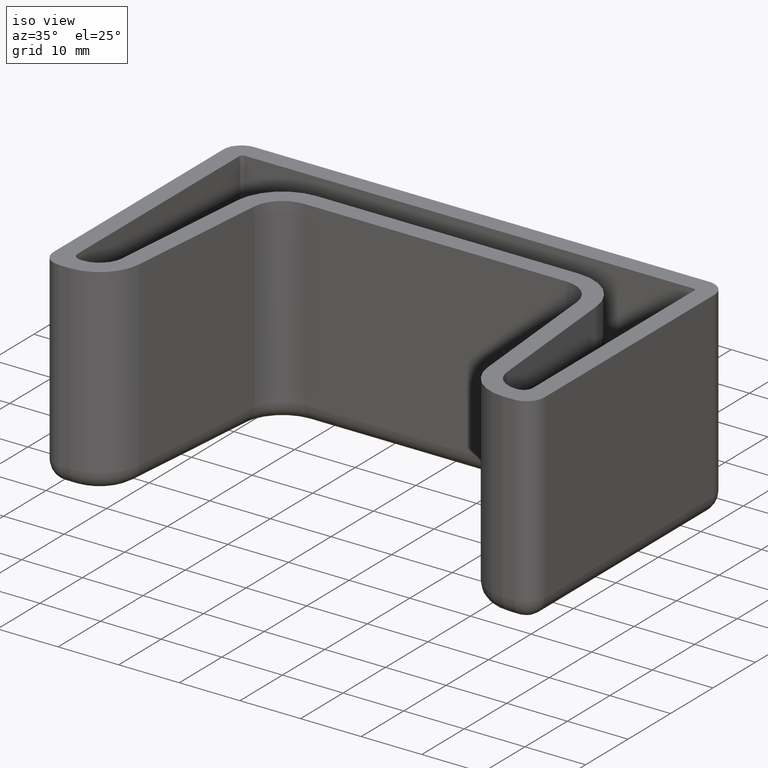
[diagram: clean part render]
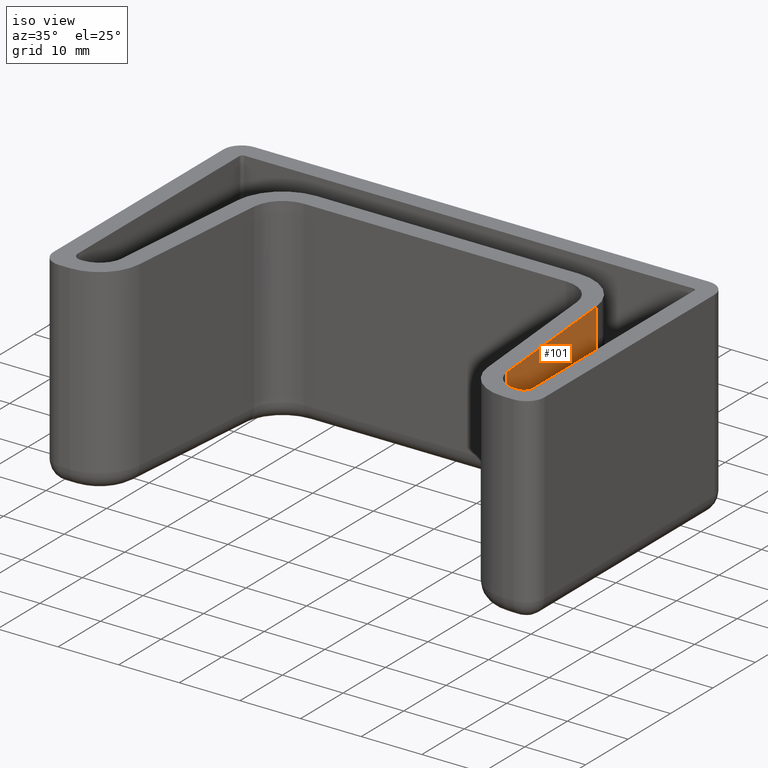
[diagram: same view with one face highlighted and labeled with its STEP entity id]
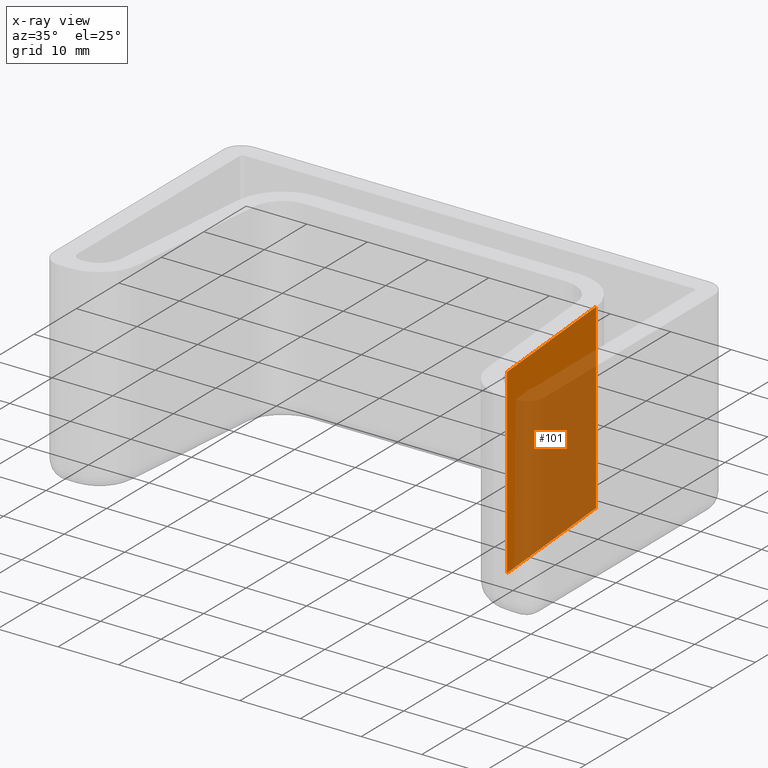
[diagram: x-ray of the same camera — body ghosted, the highlighted face saturated]
A machine part, iso view. The second image highlights one B-rep face of the part: STEP entity #101.
The next image is the same camera in x-ray: the body ghosted, the highlighted face saturated — about 74% of this face is hidden behind the body in this view.
In plain terms, the highlighted planar face has unit normal (-0.9962, -0.0872, 0).
Its self-contained STEP definition (entity closure, byte-faithful):
#101 = ADVANCED_FACE( '', ( #180 ), #181, .F. );
#180 = FACE_OUTER_BOUND( '', #283, .T. );
#181 = PLANE( '', #284 );
#283 = EDGE_LOOP( '', ( #563, #564, #565, #566 ) );
#284 = AXIS2_PLACEMENT_3D( '', #567, #568, #569 );
#563 = ORIENTED_EDGE( '', *, *, #764, .F. );
#564 = ORIENTED_EDGE( '', *, *, #836, .T. );
#565 = ORIENTED_EDGE( '', *, *, #833, .T. );
#566 = ORIENTED_EDGE( '', *, *, #837, .F. );
#567 = CARTESIAN_POINT( '', ( 31.7116491271101, -33.8486229709906, 6.75676923887701E-016 ) );
#568 = DIRECTION( '', ( -0.996194698091746, -0.0871557427476582, 1.32667783326821E-016 ) );
#569 = DIRECTION( '', ( -1.22460635382238E-016, -1.22460635382238E-016, -1.00000000000000 ) );
#764 = EDGE_CURVE( '', #914, #916, #917, .T. );
#833 = EDGE_CURVE( '', #1031, #1029, #1032, .T. );
#836 = EDGE_CURVE( '', #914, #1031, #1036, .T. );
#837 = EDGE_CURVE( '', #916, #1029, #1037, .T. );
#914 = VERTEX_POINT( '', #1131 );
#916 = VERTEX_POINT( '', #1133 );
#917 = LINE( '', #1134, #1135 );
#1029 = VERTEX_POINT( '', #1287 );
#1031 = VERTEX_POINT( '', #1289 );
#1032 = LINE( '', #1290, #1291 );
#1036 = LINE( '', #1296, #1297 );
#1037 = LINE( '', #1298, #1299 );
#1131 = CARTESIAN_POINT( '', ( 31.7116491271101, -33.8486229709906, 6.75676923887701E-016 ) );
#1133 = CARTESIAN_POINT( '', ( 29.6079081925946, -9.80275405801870, -2.26899546151283E-015 ) );
#1134 = CARTESIAN_POINT( '', ( 30.9526928368140, -25.1737128773965, -3.86658078057618E-016 ) );
#1135 = VECTOR( '', #1386, 1000.00000000000 );
#1287 = CARTESIAN_POINT( '', ( 29.6079081925946, -9.80275405801870, -30.0000000000000 ) );
#1289 = CARTESIAN_POINT( '', ( 31.7116491271101, -33.8486229709906, -30.0000000000000 ) );
#1290 = CARTESIAN_POINT( '', ( 29.6079081925946, -9.80275405801870, -30.0000000000000 ) );
#1291 = VECTOR( '', #1511, 1000.00000000000 );
#1296 = CARTESIAN_POINT( '', ( 31.7116491271101, -33.8486229709906, 6.75676923887701E-016 ) );
#1297 = VECTOR( '', #1516, 1000.00000000000 );
#1298 = CARTESIAN_POINT( '', ( 29.6079081925946, -9.80275405801870, -2.26899546151283E-015 ) );
#1299 = VECTOR( '', #1517, 1000.00000000000 );
#1386 = DIRECTION( '', ( -0.0871557427476582, 0.996194698091746, -1.11321488058643E-016 ) );
#1511 = DIRECTION( '', ( -0.0871557427476582, 0.996194698091746, -1.11321488058643E-016 ) );
#1516 = DIRECTION( '', ( -1.22460635382238E-016, -1.22460635382238E-016, -1.00000000000000 ) );
#1517 = DIRECTION( '', ( -1.22460635382238E-016, -1.22460635382238E-016, -1.00000000000000 ) );